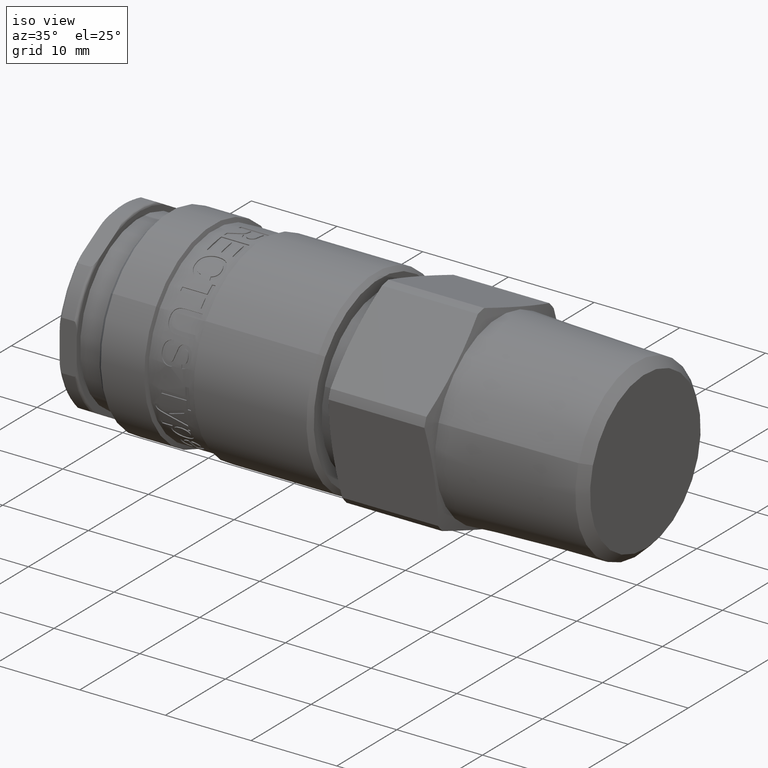
[diagram: clean part render]
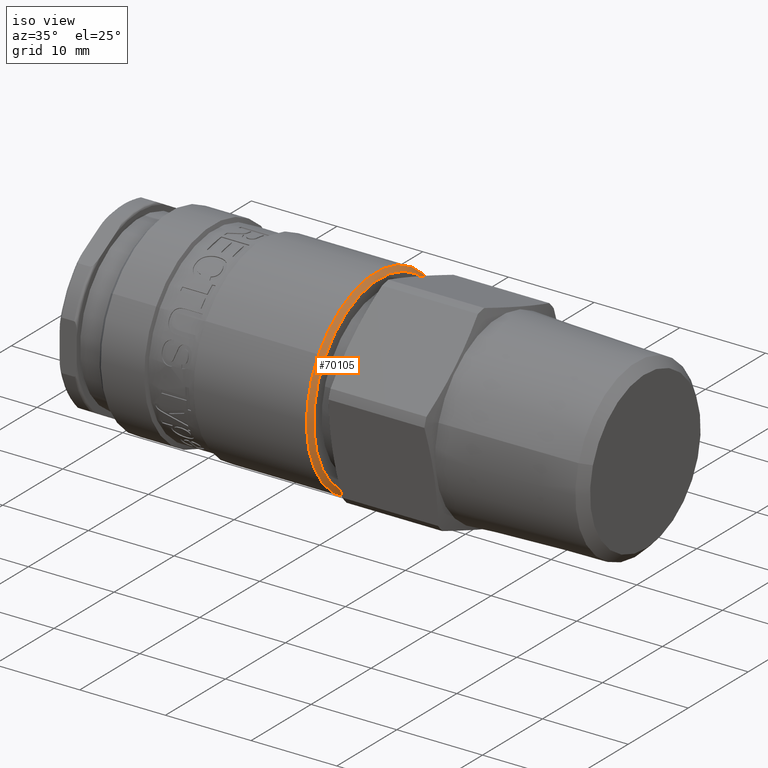
[diagram: same view with one face highlighted and labeled with its STEP entity id]
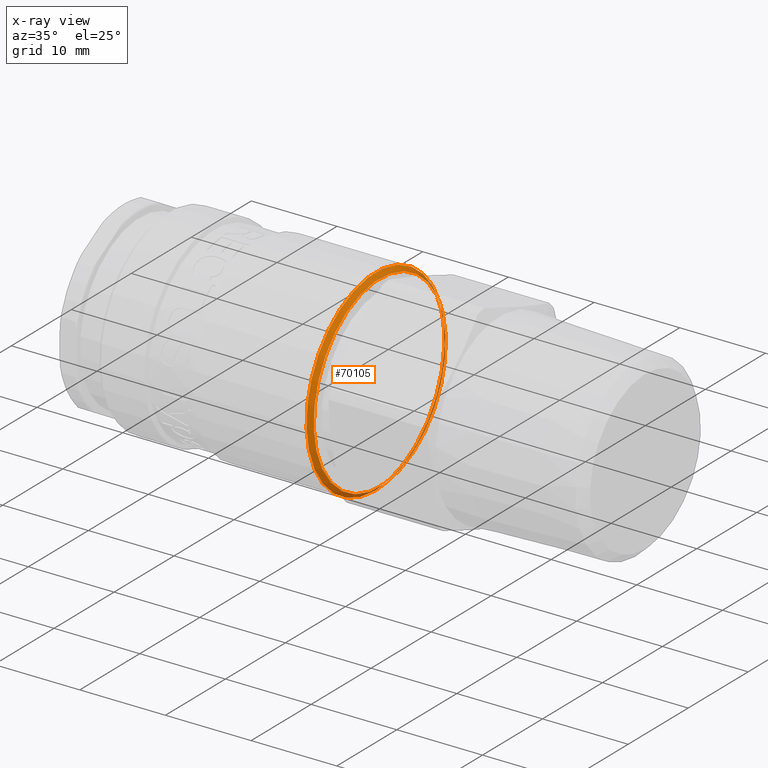
[diagram: x-ray of the same camera — body ghosted, the highlighted face saturated]
A machine part, iso view. The second image highlights one B-rep face of the part: STEP entity #70105.
The next image is the same camera in x-ray: the body ghosted, the highlighted face saturated — about 14% of this face is hidden behind the body in this view.
In plain terms, the highlighted conical surface has half-angle 45 deg.
Its self-contained STEP definition (entity closure, byte-faithful):
#70078=CARTESIAN_POINT('',(29.75,0.0,0.0));
#70079=DIRECTION('',(-1.0,0.0,0.0));
#70080=DIRECTION('',(0.0,0.826125448043343,-0.563486241265203));
#70081=AXIS2_PLACEMENT_3D('',#70078,#70079,#70080);
#70082=CONICAL_SURFACE('',#70081,11.249999999999998,45.000000000000135);
#70083=CARTESIAN_POINT('',(29.5,-9.500442652498442,6.480091774549832));
#70084=VERTEX_POINT('',#70083);
#70085=CARTESIAN_POINT('',(29.5,0.0,0.0));
#70086=DIRECTION('',(1.0,0.0,0.0));
#70087=DIRECTION('',(0.0,0.826125448043343,-0.563486241265203));
#70088=AXIS2_PLACEMENT_3D('',#70085,#70086,#70087);
#70089=CIRCLE('',#70088,11.5);
#70090=EDGE_CURVE('',#70084,#70084,#70089,.T.);
#70091=ORIENTED_EDGE('',*,*,#70090,.T.);
#70092=EDGE_LOOP('',(#70091));
#70093=FACE_OUTER_BOUND('',#70092,.T.);
#70094=CARTESIAN_POINT('',(30.0,-9.087379928476768,6.198348653917233));
#70095=VERTEX_POINT('',#70094);
#70096=CARTESIAN_POINT('',(30.0,0.0,0.0));
#70097=DIRECTION('',(-1.0,0.0,0.0));
#70098=DIRECTION('',(0.0,0.826125448043343,-0.563486241265203));
#70099=AXIS2_PLACEMENT_3D('',#70096,#70097,#70098);
#70100=CIRCLE('',#70099,11.0);
#70101=EDGE_CURVE('',#70095,#70095,#70100,.T.);
#70102=ORIENTED_EDGE('',*,*,#70101,.T.);
#70103=EDGE_LOOP('',(#70102));
#70104=FACE_BOUND('',#70103,.T.);
#70105=ADVANCED_FACE('',(#70093,#70104),#70082,.T.);